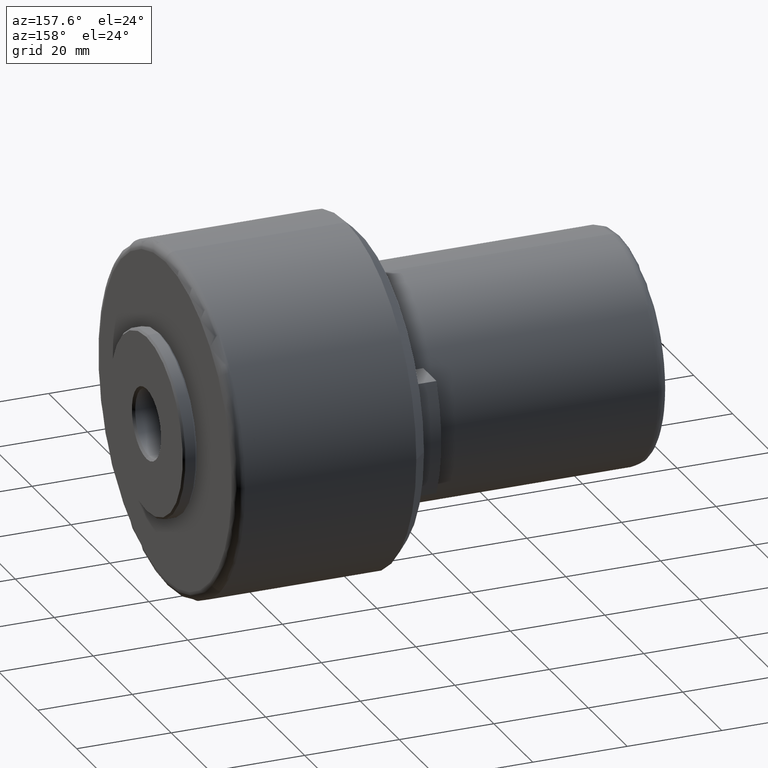
[diagram: clean part render]
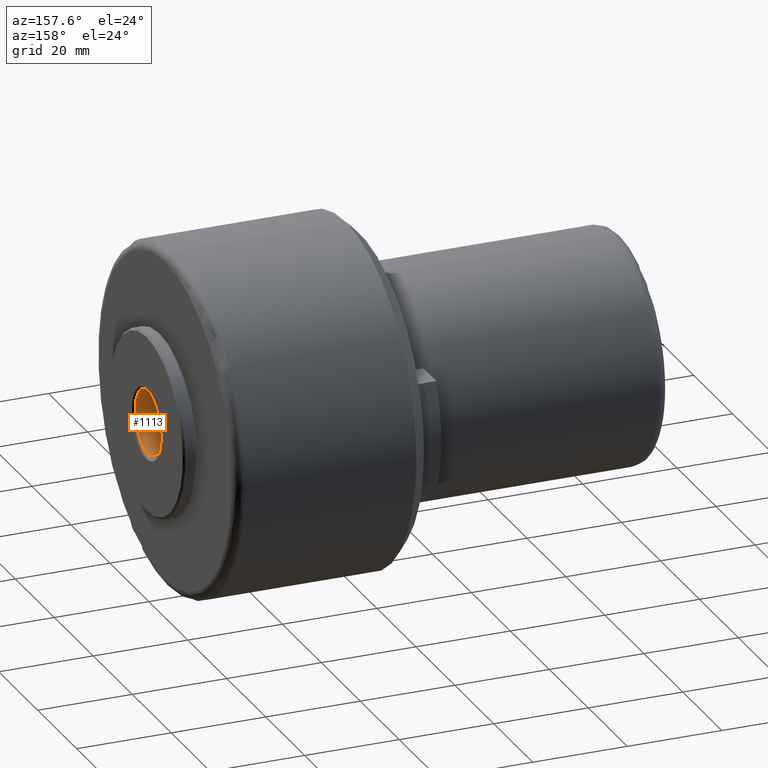
[diagram: same view with one face highlighted and labeled with its STEP entity id]
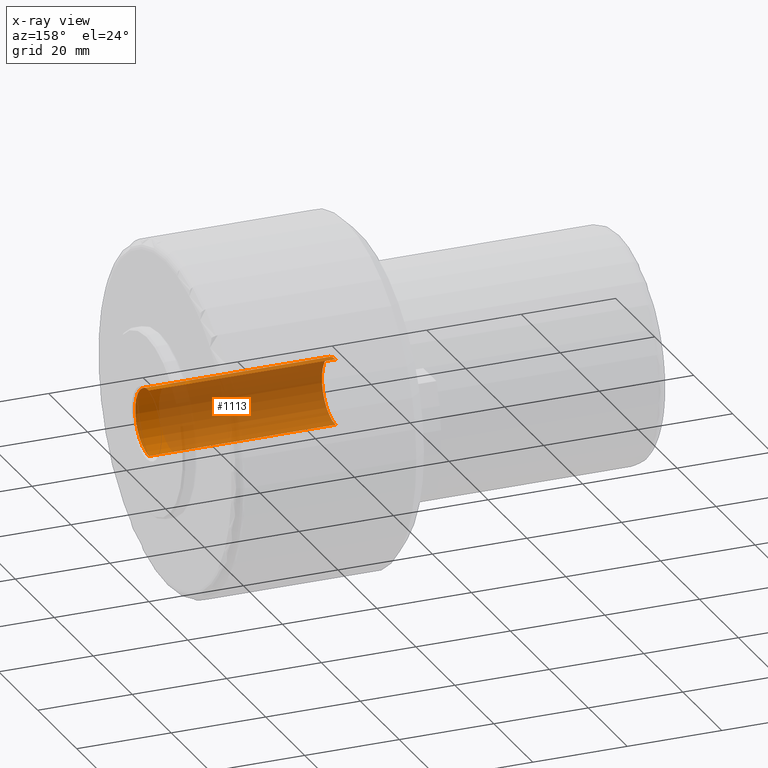
[diagram: x-ray of the same camera — body ghosted, the highlighted face saturated]
A machine part, auxiliary view. The second image highlights one B-rep face of the part: STEP entity #1113.
The next image is the same camera in x-ray: the body ghosted, the highlighted face saturated — about 87% of this face is hidden behind the body in this view.
In plain terms, the highlighted cylindrical surface (edge-blend (fillet) strip) has radius 7 mm, axis along (-1, -0, -0).
Its self-contained STEP definition (entity closure, byte-faithful):
#14 = CIRCLE ( 'NONE', #71, 6.999999999999997300 ) ;
#51 = ORIENTED_EDGE ( 'NONE', *, *, #704, .T. ) ;
#60 = LINE ( 'NONE', #1214, #891 ) ;
#71 = AXIS2_PLACEMENT_3D ( 'NONE', #454, #1205, #569 ) ;
#107 = VERTEX_POINT ( 'NONE', #361 ) ;
#219 = ORIENTED_EDGE ( 'NONE', *, *, #1069, .F. ) ;
#232 = EDGE_LOOP ( 'NONE', ( #728, #51, #323, #219 ) ) ;
#276 = VERTEX_POINT ( 'NONE', #713 ) ;
#287 = LINE ( 'NONE', #473, #1100 ) ;
#308 = CIRCLE ( 'NONE', #386, 6.999999999999993800 ) ;
#323 = ORIENTED_EDGE ( 'NONE', *, *, #426, .T. ) ;
#328 = DIRECTION ( 'NONE',  ( -1.000000000000000000, -0.0000000000000000000, -0.0000000000000000000 ) ) ;
#333 = CARTESIAN_POINT ( 'NONE',  ( 100.0000000000000100, 0.0000000000000000000, 6.999999999999997300 ) ) ;
#348 = DIRECTION ( 'NONE',  ( -1.000000000000000000, -0.0000000000000000000, -0.0000000000000000000 ) ) ;
#361 = CARTESIAN_POINT ( 'NONE',  ( 100.0000000000000100, 8.572527594031470200E-016, -6.999999999999997300 ) ) ;
#386 = AXIS2_PLACEMENT_3D ( 'NONE', #433, #450, #1264 ) ;
#426 = EDGE_CURVE ( 'NONE', #505, #276, #308, .T. ) ;
#432 = CARTESIAN_POINT ( 'NONE',  ( 0.0000000000000000000, 0.0000000000000000000, 0.0000000000000000000 ) ) ;
#433 = CARTESIAN_POINT ( 'NONE',  ( 60.50000000000003600, 0.0000000000000000000, 0.0000000000000000000 ) ) ;
#450 = DIRECTION ( 'NONE',  ( -1.000000000000000000, -0.0000000000000000000, -0.0000000000000000000 ) ) ;
#454 = CARTESIAN_POINT ( 'NONE',  ( 100.0000000000000100, 0.0000000000000000000, 0.0000000000000000000 ) ) ;
#462 = FACE_OUTER_BOUND ( 'NONE', #232, .T. ) ;
#473 = CARTESIAN_POINT ( 'NONE',  ( 0.0000000000000000000, 0.0000000000000000000, 6.999999999999997300 ) ) ;
#477 = CARTESIAN_POINT ( 'NONE',  ( 60.50000000000003600, 8.572527594031468300E-016, -6.999999999999993800 ) ) ;
#505 = VERTEX_POINT ( 'NONE', #477 ) ;
#569 = DIRECTION ( 'NONE',  ( 0.0000000000000000000, 0.0000000000000000000, -1.000000000000000000 ) ) ;
#598 = VERTEX_POINT ( 'NONE', #333 ) ;
#704 = EDGE_CURVE ( 'NONE', #107, #505, #60, .T. ) ;
#713 = CARTESIAN_POINT ( 'NONE',  ( 60.50000000000003600, 0.0000000000000000000, 6.999999999999993800 ) ) ;
#728 = ORIENTED_EDGE ( 'NONE', *, *, #1266, .T. ) ;
#891 = VECTOR ( 'NONE', #348, 1000.000000000000000 ) ;
#1069 = EDGE_CURVE ( 'NONE', #598, #276, #287, .T. ) ;
#1100 = VECTOR ( 'NONE', #1118, 1000.000000000000000 ) ;
#1113 = ADVANCED_FACE ( 'NONE', ( #462 ), #1281, .F. ) ;
#1118 = DIRECTION ( 'NONE',  ( -1.000000000000000000, -0.0000000000000000000, -0.0000000000000000000 ) ) ;
#1184 = DIRECTION ( 'NONE',  ( 0.0000000000000000000, 0.0000000000000000000, 1.000000000000000000 ) ) ;
#1205 = DIRECTION ( 'NONE',  ( 1.000000000000000000, -0.0000000000000000000, -0.0000000000000000000 ) ) ;
#1214 = CARTESIAN_POINT ( 'NONE',  ( 0.0000000000000000000, 8.572527594031470200E-016, -6.999999999999997300 ) ) ;
#1218 = AXIS2_PLACEMENT_3D ( 'NONE', #432, #328, #1184 ) ;
#1264 = DIRECTION ( 'NONE',  ( 0.0000000000000000000, 0.0000000000000000000, 1.000000000000000000 ) ) ;
#1266 = EDGE_CURVE ( 'NONE', #598, #107, #14, .T. ) ;
#1281 = CYLINDRICAL_SURFACE ( 'NONE', #1218, 6.999999999999997300 ) ;